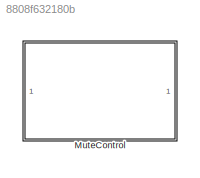
MODEL slx_8808f632180b
KIND library
CONFIG AbsTol = auto
CONFIG EnableMultiTasking = off
CONFIG FixedStep = auto
CONFIG MaxStep = auto
CONFIG MinStep = auto
CONFIG RelTol = 1e-3
CONFIG SampleTimeConstraint = Unconstrained
CONFIG SolverName = VariableStepAuto
CONFIG StartTime = 0.0
CONFIG StopTime = 10.0
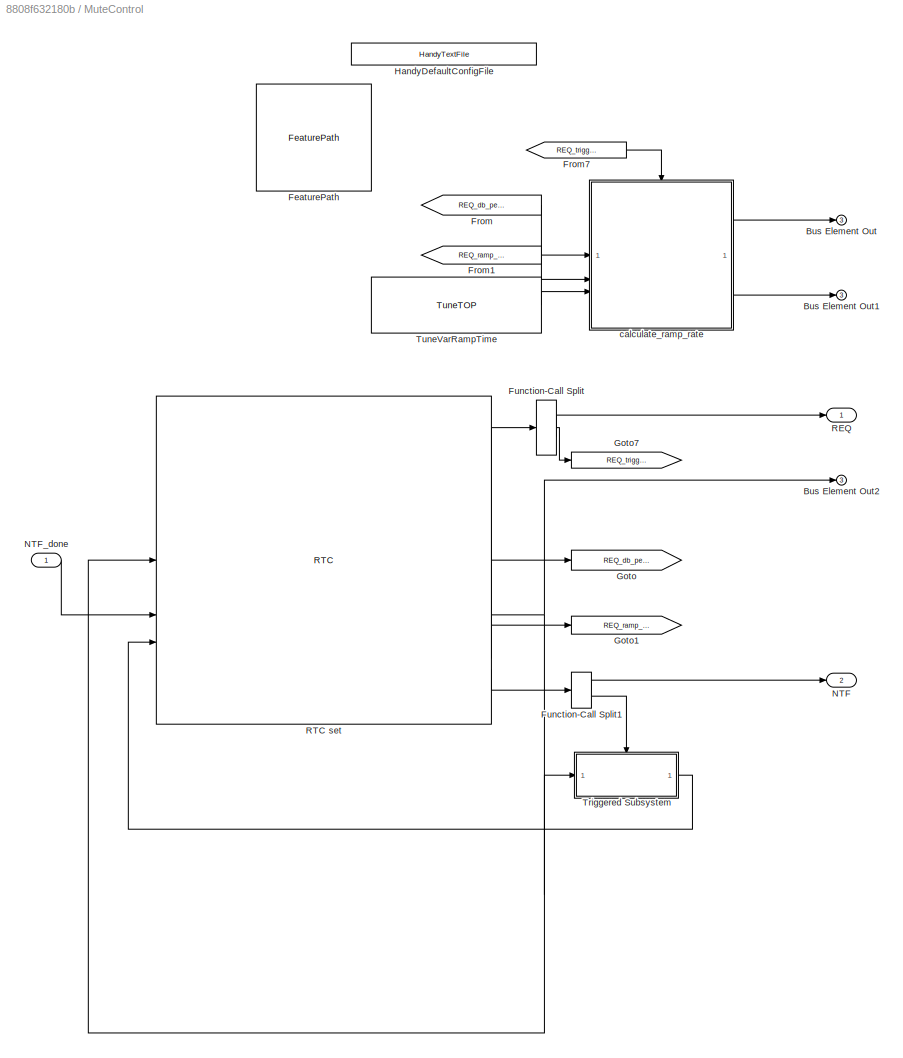
BLOCK [SubSystem] MuteControl
BLOCK [Outport] MuteControl/Bus Element Out
  Port = 3
BLOCK [Outport] MuteControl/Bus Element Out1
  Port = 3
BLOCK [Outport] MuteControl/Bus Element Out2
  Port = 3
BLOCK [Reference] MuteControl/FeaturePath  REF=FeaturePath/FeaturePath
  SourceBlock = FeaturePath/FeaturePath
  SourceProductName = Bose Talaria
  SourceType = Talaria Feature Path
BLOCK [From] MuteControl/From
  GotoTag = REQ_db_per_second
BLOCK [From] MuteControl/From1
  GotoTag = REQ_ramp_ms
BLOCK [From] MuteControl/From7
  GotoTag = REQ_trigger_ramp
BLOCK [FunctionCallSplit] MuteControl/Function-Call Split
  IconShape = distinctive
  NumOutputPorts = 2
BLOCK [FunctionCallSplit] MuteControl/Function-Call Split1
  IconShape = distinctive
  NumOutputPorts = 2
  OutputPortLayout = default
BLOCK [Goto] MuteControl/Goto
  GotoTag = REQ_db_per_second
BLOCK [Goto] MuteControl/Goto1
  GotoTag = REQ_ramp_ms
BLOCK [Goto] MuteControl/Goto7
  GotoTag = REQ_trigger_ramp
BLOCK [Reference] MuteControl/HandyDefaultConfigFile  REF=HandyTextFile/HandyTextFile
  SourceBlock = HandyTextFile/HandyTextFile
  SourceProductName = Bose Talaria
  SourceType = Talaria Handy Text File
BLOCK [Outport] MuteControl/NTF
  Port = 2
BLOCK [Inport] MuteControl/NTF_done
BLOCK [Outport] MuteControl/REQ
BLOCK [Reference] MuteControl/RTC set  REF=RTC/RTC
  Description = Command a mute by specifying whether mute is active (non zero mute_switch) or inactive (mute_switch is "0"). If db_per_second is non-zero, it commands the timing of the mute, otherwise the ramp_milliseconds is used.
  SourceBlock = RTC/RTC
  SourceProductName = Bose Talaria
  SourceType = Talaria RTC Receive
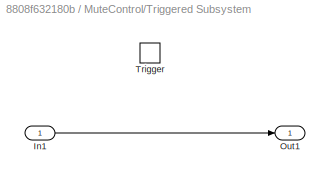
BLOCK [SubSystem] MuteControl/Triggered Subsystem
  TreatAsAtomicUnit = on
BLOCK [Inport] MuteControl/Triggered Subsystem/In1
BLOCK [Outport] MuteControl/Triggered Subsystem/Out1
BLOCK [TriggerPort] MuteControl/Triggered Subsystem/Trigger
  StatesWhenEnabling = held
  TriggerType = function-call
  VariantControl = Variant
BLOCK [Reference] MuteControl/TuneVarRampTime  REF=TuneVar/TuneTOP
  Description = Specifies the default value of ramp time for the Mute or Unmute operation.\nUsed only when the RTC message does not contain either ramp rate or ramp time.
  SourceBlock = TuneVar/TuneTOP
  SourceProductName = Bose Talaria
  SourceType = Talaria Trivial Tune TOP
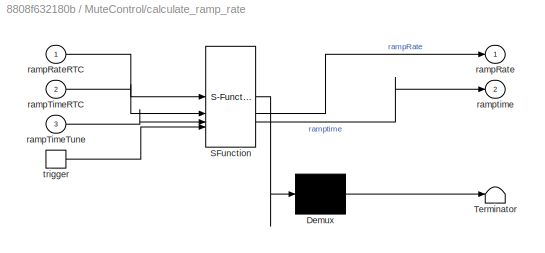
BLOCK [SubSystem] MuteControl/calculate_ramp_rate
  ErrorFcn = Stateflow.Translate.translate
  PermitHierarchicalResolution = ExplicitOnly
  SFBlockType = MATLAB Function
  TreatAsAtomicUnit = on
BLOCK [Demux] MuteControl/calculate_ramp_rate/ Demux 
  Outputs = 1
BLOCK [S-Function] MuteControl/calculate_ramp_rate/ SFunction 
  EnableBusSupport = off
  FunctionName = sf_sfun
  Parameters = rampRateBounds,rampTimeBounds
  PortCounts = [4 3]
  SFcnIsStateOwnerBlock = off
  SFunctionDeploymentMode = off
  Tag = Stateflow S-Function 1
BLOCK [Terminator] MuteControl/calculate_ramp_rate/ Terminator 
BLOCK [Outport] MuteControl/calculate_ramp_rate/rampRate
  VectorParamsAs1DForOutWhenUnconnected = off
BLOCK [Inport] MuteControl/calculate_ramp_rate/rampRateRTC
BLOCK [Inport] MuteControl/calculate_ramp_rate/rampTimeRTC
  Port = 2
BLOCK [Inport] MuteControl/calculate_ramp_rate/rampTimeTune
  Port = 3
BLOCK [Outport] MuteControl/calculate_ramp_rate/ramptime
  Port = 2
  VectorParamsAs1DForOutWhenUnconnected = off
BLOCK [TriggerPort] MuteControl/calculate_ramp_rate/trigger
  ShowOutputPort = on
  StatesWhenEnabling = held
  TriggerType = function-call
  VariantControl = Variant
LINE MuteControl/From1:1 -> MuteControl/calculate_ramp_rate:2
LINE MuteControl/From7:1 -> MuteControl/calculate_ramp_rate:trigger
LINE MuteControl/From:1 -> MuteControl/calculate_ramp_rate:1
LINE MuteControl/Function-Call Split1:1 -> MuteControl/NTF:1
LINE MuteControl/Function-Call Split1:2 -> MuteControl/Triggered Subsystem:trigger
LINE MuteControl/Function-Call Split:1 -> MuteControl/Goto7:1
LINE MuteControl/Function-Call Split:2 -> MuteControl/REQ:1
LINE MuteControl/NTF_done:1 -> MuteControl/RTC set:2
LINE MuteControl/RTC set:1 -> MuteControl/Function-Call Split:1
NET MuteControl/RTC set:2 -> MuteControl/Bus Element Out2:1, MuteControl/RTC set:1, MuteControl/Triggered Subsystem:1
LINE MuteControl/RTC set:3 -> MuteControl/Goto:1
LINE MuteControl/RTC set:4 -> MuteControl/Goto1:1
LINE MuteControl/RTC set:5 -> MuteControl/Function-Call Split1:1
LINE MuteControl/Triggered Subsystem/In1:1 -> MuteControl/Triggered Subsystem/Out1:1
LINE MuteControl/Triggered Subsystem:1 -> MuteControl/RTC set:3
LINE MuteControl/TuneVarRampTime:1 -> MuteControl/calculate_ramp_rate:3
LINE MuteControl/calculate_ramp_rate:1 -> MuteControl/Bus Element Out:1
LINE MuteControl/calculate_ramp_rate:2 -> MuteControl/Bus Element Out1:1
note: NET lines group one-source signal fan-out (src -> all destinations, sorted); 1:1 wires keep LINE
CHART MuteControl/calculate_ramp_rate states=1 transitions=1
  STATE_LABEL 'eML_blk_kernel()'
  STATE_LABEL 'SCRIPT:\nfunction [rampRate,ramptime] = Calculate_ramp_parameters(rampRateRTC, rampTimeRTC, rampTimeTune,... % Inputs\n    rampRateBounds, rampTimeBounds) % parameters\n\n% Ramp time and rate are provided to the block through RTC messages. However \n% in case neither of them are provided, the block will use the default ramp \n% time given in the tune variable.\n\n    ramptime = single(rampTimeTune);\n    r...<+371ch>'
CHART  states=0 transitions=0
